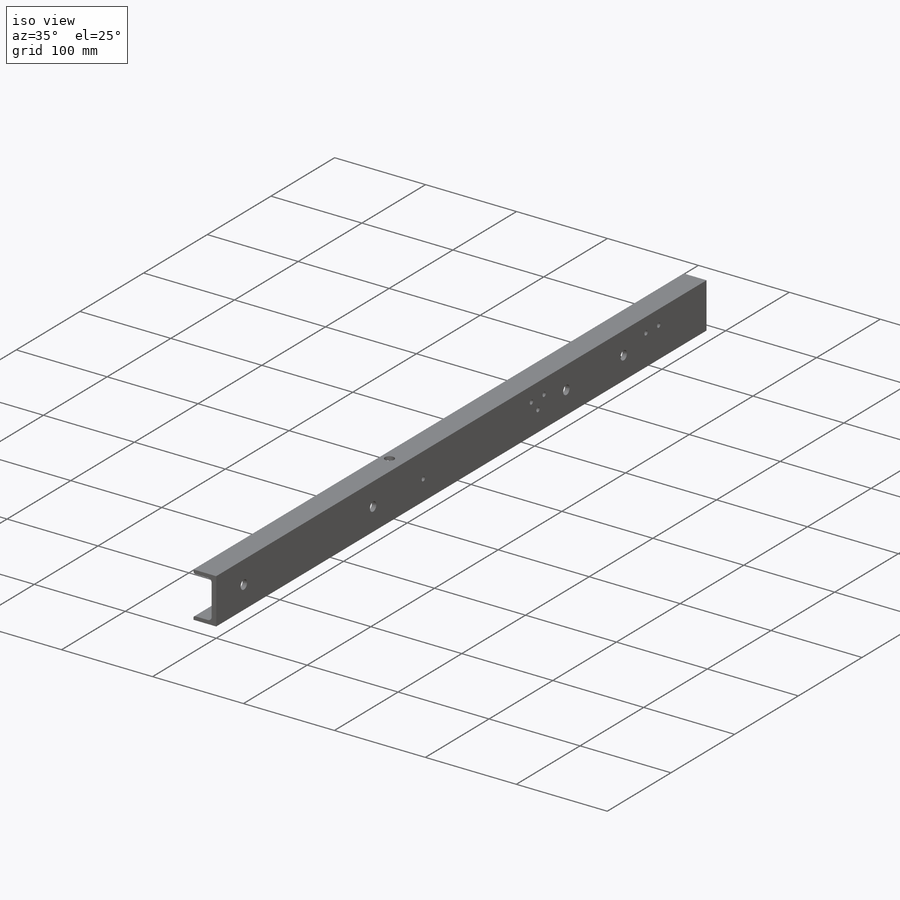
[diagram: iso view]
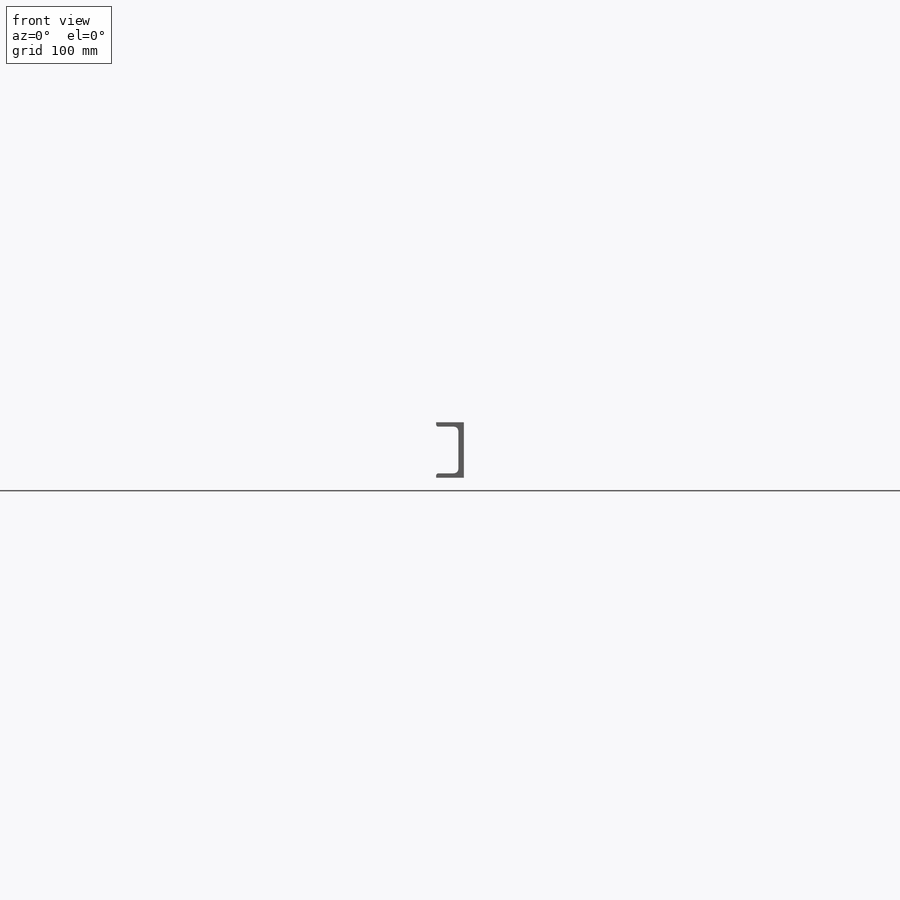
[diagram: front view]
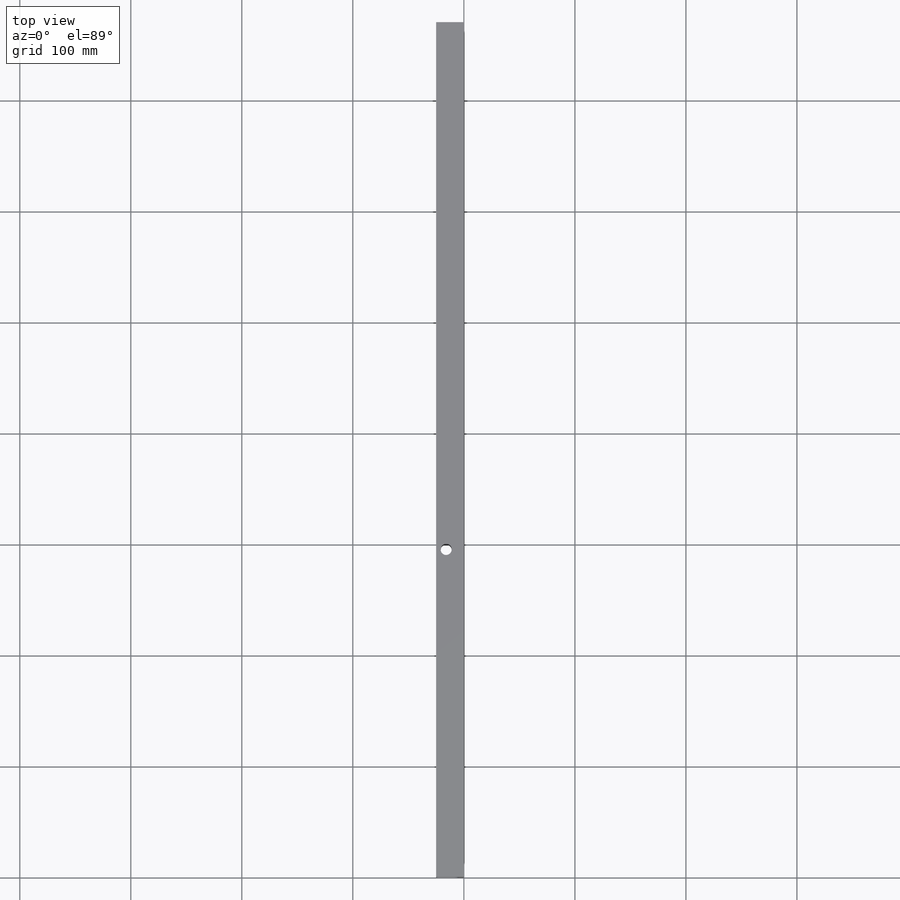
[diagram: top view]
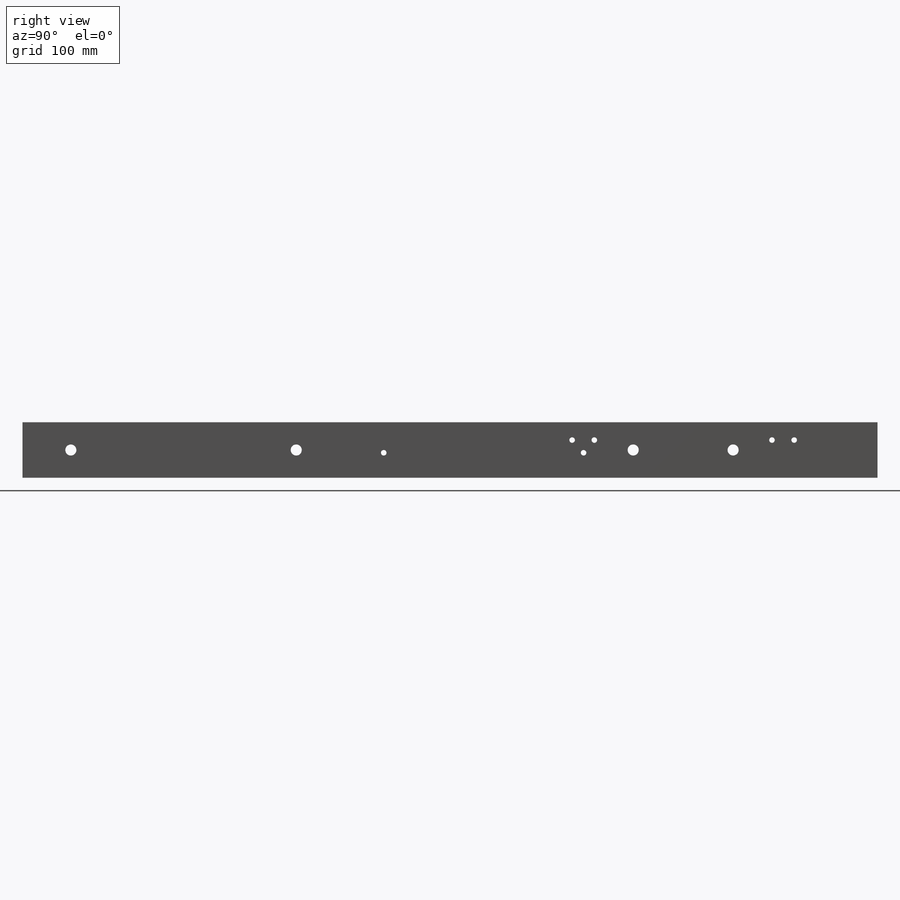
[diagram: right view]
SOLIDWORKS PART (.sldprt)
format: sldprt  version: not decoded by parser v0  size: 336,384 bytes
history: native  units: mm
features: sketch x12, hole x3, plane x2, cut_extrude x2, material x1 (+16 scaffold rows collapsed)
feature tree (36):
  scaffold x16  (default folders/planes/origin — collapsed)
  material  "Cast Alloy Steel"
  sketch  "Sketch4"  dims[D1=770.0mm]
  plane  "Plane1"
  sketch  "Sketch11"  dims[c1.D4=6.35mm c1.D5=6.35mm c2.D4=6.35mm c2.D5=6.35mm c2.RI=4.0mm c2.D2=3.175mm c3.D4=9.525mm c3.RA=8.382mm c4.D4=2.0mm c4.D1=~380.99967mm c4.D2=6.35mm c4.D3=~94.386318mm c4.D6=6.35mm c5.D2=45.0deg c5.D6=~9.775613mm c6.D2=12.84deg c6.D6=~18.186384mm c6.D7=~8.667528deg c6.D8=~7.604041mm c7.D2=~5.342953mm c7.D8=~5.388932mm c8.D2=6.35mm c8.D7=6.35mm c8.D8=5.0deg c9.D2=~9.462999deg c9.D7=~4.995508mm c9.D1=76.2mm c10.D2=152.4mm c10.D3=12.7mm c10.D6=~9.462997deg c10.Depth=50.0mm c11.D2=0.0deg c11.BF=25.0mm c11.TW=5.0mm c11.TF=7.5mm c11.D8=~109.715019mm c11.d1=34.0mm c11.D3=8.0mm]
  plane  "Plane2"  Offset=25mm
  sketch  "Sketch14"  dims[D1=175.0mm]
  hole  "Ø10.0 (10) Diameter Hole1"  Diameter=10mm Depth=11mm
  sketch  "Sketch20"  dims[D1=0.0mm D2=0.0mm D3=90.0mm D4=45.0mm]
  sketch  "Sketch19"  dims[hole-wizard template sketch: 47 standard entries collapsed; hole parameters kept: c15.Hole Depth=11.0mm c15.D3=~14.816244mm c15.Drill Angle=118.0deg]
  sketch  "Sketch21"  dims[D1=450.0mm]
  sketch  "Sketch28"  dims[D1=10.0mm D2=9.0mm D3=150.0mm]
  cut_extrude  "Cut-Extrude1"  [1 undecoded]
  hole  "Ø10.0 (10) Diameter Hole2"  Diameter=10mm Depth=11mm
  sketch  "Sketch30"  dims[D1=0.0mm D2=0.0mm D3=203.0mm D4=101.5mm D5=90.0mm]
  sketch  "Sketch29"  dims[hole-wizard template sketch: 47 standard entries collapsed; hole parameters kept: c15.Hole Depth=11.0mm c15.D3=~14.816244mm c15.Drill Angle=118.0deg]
  hole  "Ø5.0 (5) Diameter Hole1"  Diameter=5mm Depth=11mm
  sketch  "Sketch32"  dims[D1=35.0mm D2=35.0mm D3=8.95mm D4=8.95mm D5=20.0mm D6=20.0mm]
  sketch  "Sketch31"  dims[hole-wizard template sketch: 50 standard entries collapsed; hole parameters above]
  sketch  "Sketch33"  dims[D1=5.0mm D2=5.0mm]
  cut_extrude  "Cut-Extrude2"  Depth=10mm
decode coverage: 16 of 17 modeling features carry decoded parameters
note: ~ marks probable driven/reference dimensions
note: 1 parameter value undecoded
note: suppression state not decoded; provenance and decode notes live in map.json
